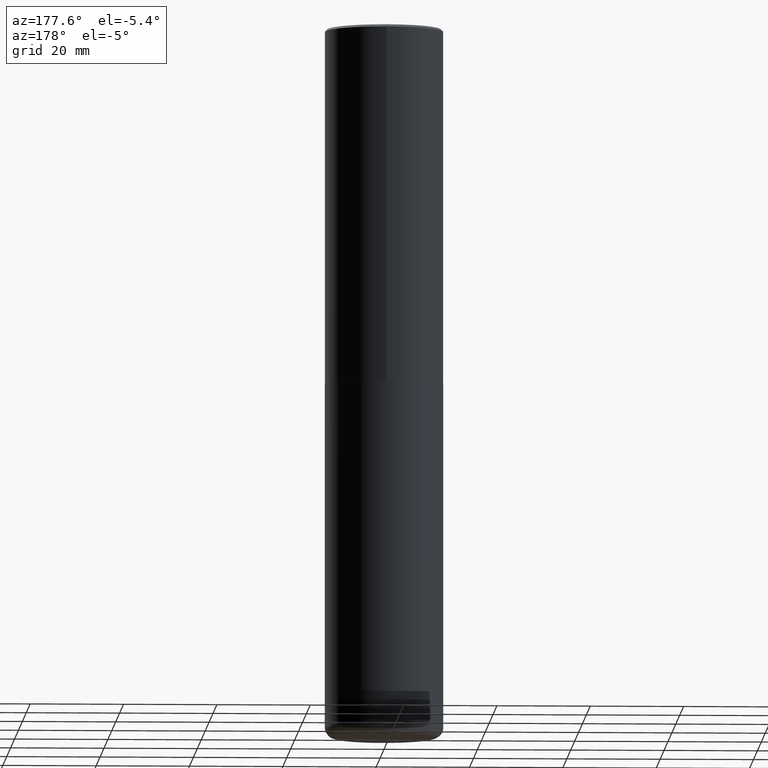
[diagram: clean part render]
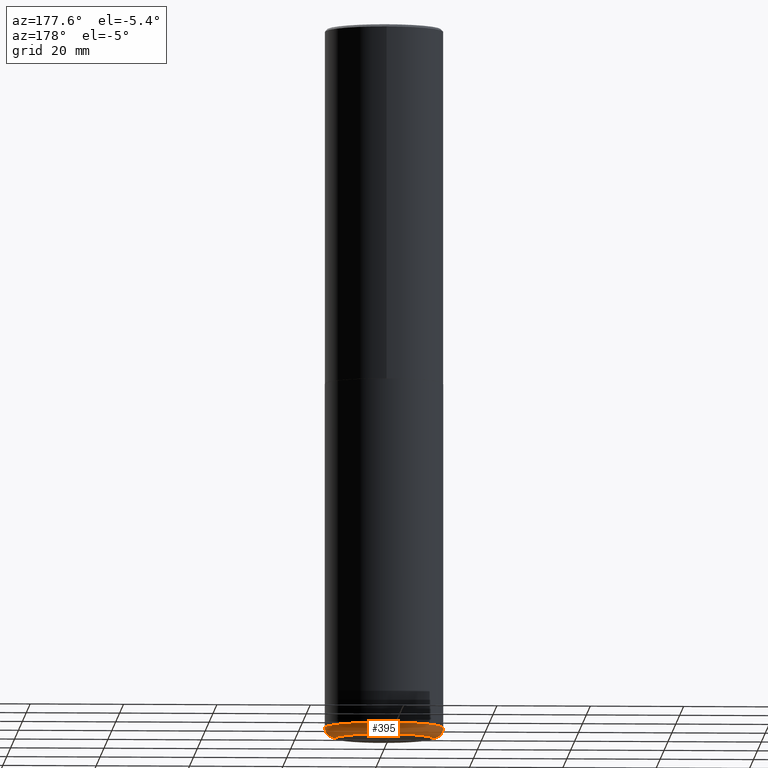
[diagram: same view with one face highlighted and labeled with its STEP entity id]
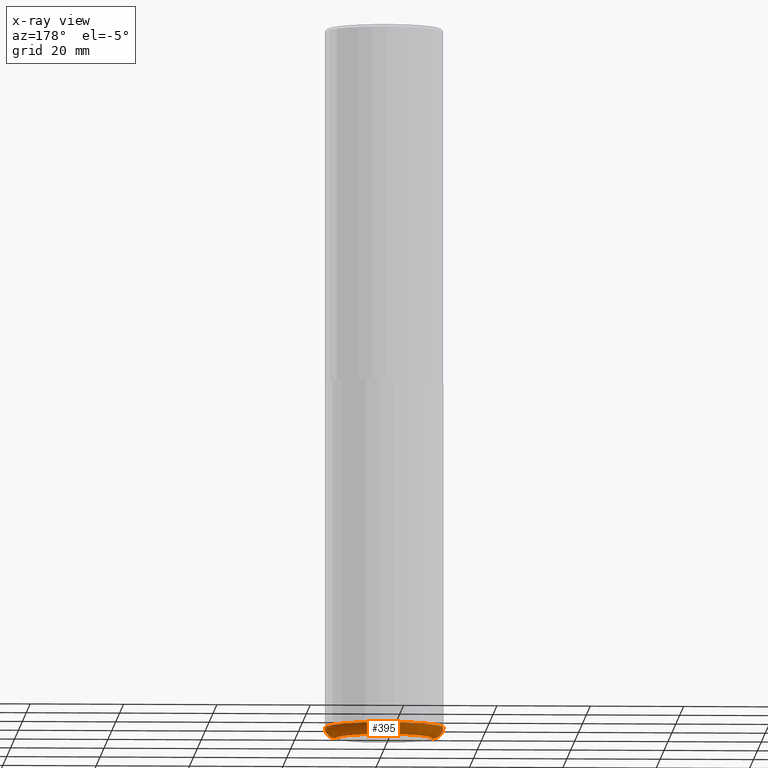
[diagram: x-ray of the same camera — body ghosted, the highlighted face saturated]
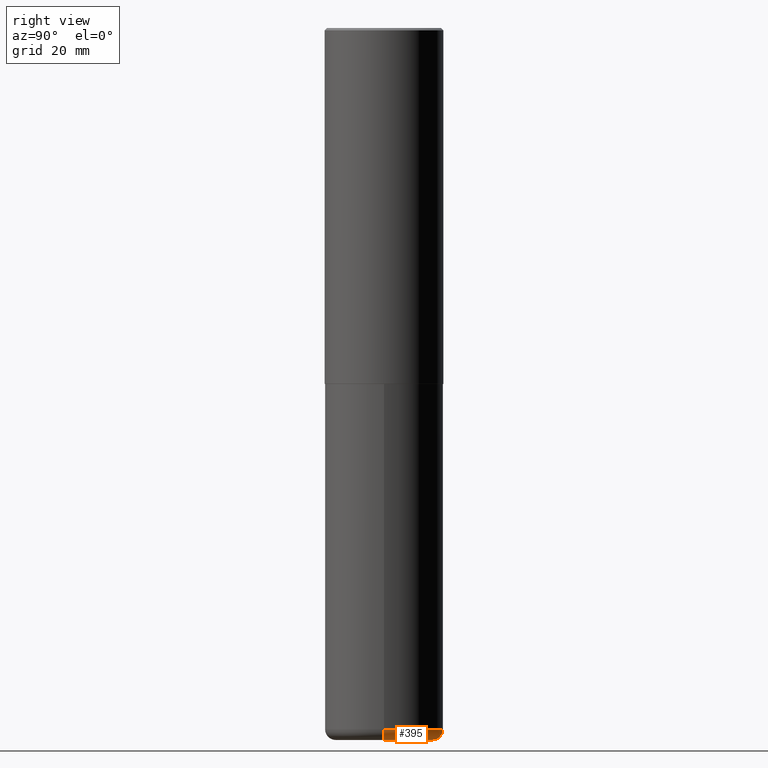
[diagram: same view with one face highlighted and labeled with its STEP entity id]
A machine part, auxiliary view. The second image highlights one B-rep face of the part: STEP entity #395.
The next image is the same camera in x-ray: the body ghosted, the highlighted face saturated — about 0% of this face is hidden behind the body in this view.
A second angle (right view) of the same face is appended — the face is thin or edge-on in the first view.
In plain terms, the highlighted toroidal blend (fillet) surface has major radius 10.414 mm and minor (blend) radius 2.286 mm.
Its self-contained STEP definition (entity closure, byte-faithful):
#2 = DIRECTION ( 'NONE',  ( -2.445468806185136597E-29, 3.491481338843145583E-15, 1.000000000000000000 ) ) ;
#14 = AXIS2_PLACEMENT_3D ( 'NONE', #65, #407, #202 ) ;
#19 = DIRECTION ( 'NONE',  ( -2.445468806185136597E-29, 3.491481338843145583E-15, 1.000000000000000000 ) ) ;
#32 = AXIS2_PLACEMENT_3D ( 'NONE', #72, #2, #242 ) ;
#35 = CARTESIAN_POINT ( 'NONE',  ( -0.4099999999999999756, -1.755880192510247630E-14, -6.000000000000000888 ) ) ;
#56 = DIRECTION ( 'NONE',  ( 1.000000000000000000, -6.982962677686262766E-15, 0.000000000000000000 ) ) ;
#59 = CARTESIAN_POINT ( 'NONE',  ( 0.4099999999999999756, -2.349766941041436258E-14, -5.910000000000000142 ) ) ;
#65 = CARTESIAN_POINT ( 'NONE',  ( -0.4099999999999999756, -1.772142949594657767E-14, -5.910000000000000142 ) ) ;
#66 = VERTEX_POINT ( 'NONE', #88 ) ;
#69 = VERTEX_POINT ( 'NONE', #335 ) ;
#72 = CARTESIAN_POINT ( 'NONE',  ( 1.445272064455415567E-28, -2.063465471256298944E-14, -5.910000000000000142 ) ) ;
#88 = CARTESIAN_POINT ( 'NONE',  ( -0.5000000000000001110, -1.708194103376248851E-14, -5.910000000000000142 ) ) ;
#101 = CIRCLE ( 'NONE', #14, 0.09000000000000020484 ) ;
#106 = CARTESIAN_POINT ( 'NONE',  ( 1.445272064455415567E-28, -2.063465471256298944E-14, -5.910000000000000142 ) ) ;
#116 = ORIENTED_EDGE ( 'NONE', *, *, #158, .T. ) ;
#120 = AXIS2_PLACEMENT_3D ( 'NONE', #59, #235, #201 ) ;
#131 = DIRECTION ( 'NONE',  ( 1.000000000000000000, -6.982962677686271444E-15, 0.000000000000000000 ) ) ;
#144 = EDGE_CURVE ( 'NONE', #153, #69, #330, .T. ) ;
#153 = VERTEX_POINT ( 'NONE', #380 ) ;
#158 = EDGE_CURVE ( 'NONE', #153, #370, #253, .T. ) ;
#164 = DIRECTION ( 'NONE',  ( -2.445468806185136597E-29, 3.491481338843145583E-15, 1.000000000000000000 ) ) ;
#165 = ORIENTED_EDGE ( 'NONE', *, *, #144, .F. ) ;
#190 = ORIENTED_EDGE ( 'NONE', *, *, #315, .T. ) ;
#201 = DIRECTION ( 'NONE',  ( 1.000000000000000000, -6.982962677686252511E-15, 0.000000000000000000 ) ) ;
#202 = DIRECTION ( 'NONE',  ( -1.000000000000000000, 7.105427357600996337E-15, 0.000000000000000000 ) ) ;
#234 = AXIS2_PLACEMENT_3D ( 'NONE', #414, #164, #131 ) ;
#235 = DIRECTION ( 'NONE',  ( -6.982962677686266711E-15, -1.000000000000000000, 3.491481338843145583E-15 ) ) ;
#240 = TOROIDAL_SURFACE ( 'NONE', #32, 0.4099999999999999756, 0.09000000000000020484 ) ;
#242 = DIRECTION ( 'NONE',  ( 1.000000000000000000, -6.982962677686268288E-15, 4.883557194083113462E-29 ) ) ;
#253 = CIRCLE ( 'NONE', #234, 0.4099999999999999756 ) ;
#271 = EDGE_CURVE ( 'NONE', #69, #66, #396, .T. ) ;
#277 = FACE_OUTER_BOUND ( 'NONE', #350, .T. ) ;
#315 = EDGE_CURVE ( 'NONE', #370, #66, #101, .T. ) ;
#330 = CIRCLE ( 'NONE', #120, 0.09000000000000020484 ) ;
#335 = CARTESIAN_POINT ( 'NONE',  ( 0.5000000000000001110, -2.412613605140612280E-14, -5.910000000000000142 ) ) ;
#350 = EDGE_LOOP ( 'NONE', ( #116, #190, #354, #165 ) ) ;
#354 = ORIENTED_EDGE ( 'NONE', *, *, #271, .F. ) ;
#370 = VERTEX_POINT ( 'NONE', #35 ) ;
#380 = CARTESIAN_POINT ( 'NONE',  ( 0.4099999999999999756, -2.381190273091024584E-14, -6.000000000000000888 ) ) ;
#395 = ADVANCED_FACE ( 'NONE', ( #277 ), #240, .T. ) ;
#396 = CIRCLE ( 'NONE', #415, 0.5000000000000000000 ) ;
#407 = DIRECTION ( 'NONE',  ( 7.105427357601001859E-15, 1.000000000000000000, -3.491481338843145583E-15 ) ) ;
#414 = CARTESIAN_POINT ( 'NONE',  ( 1.467281283711081958E-28, -2.094888803305887271E-14, -6.000000000000000888 ) ) ;
#415 = AXIS2_PLACEMENT_3D ( 'NONE', #106, #19, #56 ) ;